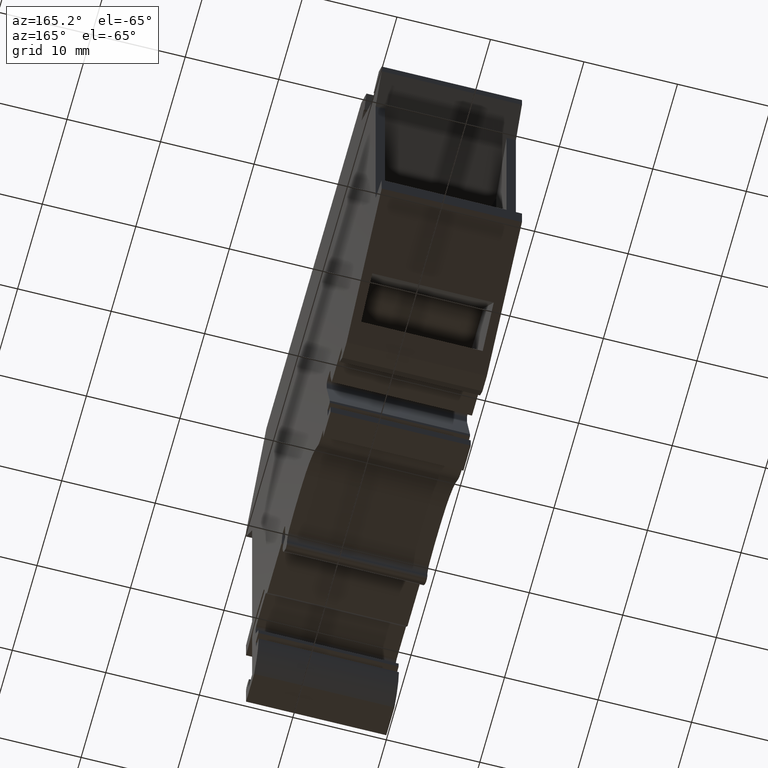
[diagram: clean part render]
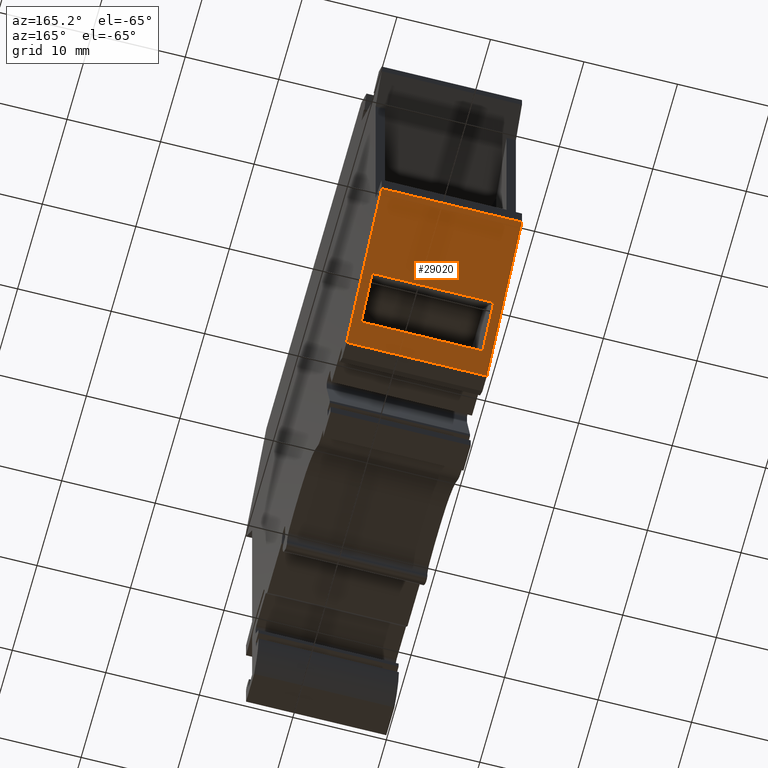
[diagram: same view with one face highlighted and labeled with its STEP entity id]
A machine part, auxiliary view. The second image highlights one B-rep face of the part: STEP entity #29020.
In plain terms, the highlighted planar face has unit normal (0, -0.5, 0.866).
Its self-contained STEP definition (entity closure, byte-faithful):
#1640=CARTESIAN_POINT('',(-44.6615658524051,268.104310306645,7.4));
#1650=VERTEX_POINT('',#1640);
#1680=CARTESIAN_POINT('',(-134.15880229048,216.433056757395,7.4));
#1690=DIRECTION('',(-0.866025403784439,-0.5,0.));
#1700=VECTOR('',#1690,1.);
#1710=LINE('',#1680,#1700);
#1720=CARTESIAN_POINT('',(-58.8643824744697,259.904310306645,7.4));
#1730=VERTEX_POINT('',#1720);
#1740=EDGE_CURVE('',#1650,#1730,#1710,.T.);
#28200=CARTESIAN_POINT('',(-58.8643824744697,259.904310306645,
-0.0999999999999996));
#28210=DIRECTION('',(0.,0.,-1.));
#28220=VECTOR('',#28210,1.);
#28230=LINE('',#28200,#28220);
#28240=CARTESIAN_POINT('',(-58.8643824744697,259.904310306645,-7.6));
#28250=VERTEX_POINT('',#28240);
#28260=EDGE_CURVE('',#1730,#28250,#28230,.T.);
#28450=CARTESIAN_POINT('',(-44.6615658524051,268.104310306645,7.4));
#28460=DIRECTION('',(-0.5,0.866025403784439,0.));
#28470=DIRECTION('',(0.866025403784439,0.5,0.));
#28480=AXIS2_PLACEMENT_3D('',#28450,#28460,#28470);
#28490=PLANE('',#28480);
#28500=CARTESIAN_POINT('',(-134.15880229048,216.433056757395,-6.6));
#28510=DIRECTION('',(0.866025403784439,0.5,0.));
#28520=VECTOR('',#28510,1.);
#28530=LINE('',#28500,#28520);
#28540=CARTESIAN_POINT('',(-56.7615658524156,261.118372049445,-6.6));
#28550=VERTEX_POINT('',#28540);
#28560=CARTESIAN_POINT('',(-52.2848652721126,263.702996334564,-6.6));
#28570=VERTEX_POINT('',#28560);
#28580=EDGE_CURVE('',#28550,#28570,#28530,.T.);
#28590=ORIENTED_EDGE('',*,*,#28580,.F.);
#28600=CARTESIAN_POINT('',(-52.2848652721126,263.702996334564,
-0.0999999999999996));
#28610=DIRECTION('',(0.,0.,1.));
#28620=VECTOR('',#28610,1.);
#28630=LINE('',#28600,#28620);
#28640=CARTESIAN_POINT('',(-52.2848652721126,263.702996334564,6.4));
#28650=VERTEX_POINT('',#28640);
#28660=EDGE_CURVE('',#28570,#28650,#28630,.T.);
#28670=ORIENTED_EDGE('',*,*,#28660,.F.);
#28680=CARTESIAN_POINT('',(-134.15880229048,216.433056757395,6.4));
#28690=DIRECTION('',(-0.866025403784439,-0.5,0.));
#28700=VECTOR('',#28690,1.);
#28710=LINE('',#28680,#28700);
#28720=CARTESIAN_POINT('',(-56.7615658524156,261.118372049445,6.4));
#28730=VERTEX_POINT('',#28720);
#28740=EDGE_CURVE('',#28650,#28730,#28710,.T.);
#28750=ORIENTED_EDGE('',*,*,#28740,.F.);
#28760=CARTESIAN_POINT('',(-56.7615658524156,261.118372049445,
-0.0999999999999996));
#28770=DIRECTION('',(0.,0.,-1.));
#28780=VECTOR('',#28770,1.);
#28790=LINE('',#28760,#28780);
#28800=EDGE_CURVE('',#28730,#28550,#28790,.T.);
#28810=ORIENTED_EDGE('',*,*,#28800,.F.);
#28820=EDGE_LOOP('',(#28810,#28750,#28670,#28590));
#28830=FACE_BOUND('',#28820,.T.);
#28840=ORIENTED_EDGE('',*,*,#1740,.T.);
#28850=CARTESIAN_POINT('',(-44.6615658524051,268.104310306645,
-0.0999999999999996));
#28860=DIRECTION('',(0.,0.,-1.));
#28870=VECTOR('',#28860,1.);
#28880=LINE('',#28850,#28870);
#28890=CARTESIAN_POINT('',(-44.6615658524051,268.104310306645,-7.6));
#28900=VERTEX_POINT('',#28890);
#28910=EDGE_CURVE('',#1650,#28900,#28880,.T.);
#28920=ORIENTED_EDGE('',*,*,#28910,.F.);
#28930=CARTESIAN_POINT('',(-134.15880229048,216.433056757395,-7.6));
#28940=DIRECTION('',(-0.866025403784439,-0.5,0.));
#28950=VECTOR('',#28940,1.);
#28960=LINE('',#28930,#28950);
#28970=EDGE_CURVE('',#28900,#28250,#28960,.T.);
#28980=ORIENTED_EDGE('',*,*,#28970,.F.);
#28990=ORIENTED_EDGE('',*,*,#28260,.T.);
#29000=EDGE_LOOP('',(#28990,#28980,#28920,#28840));
#29010=FACE_OUTER_BOUND('',#29000,.T.);
#29020=ADVANCED_FACE('',(#28830,#29010),#28490,.F.);